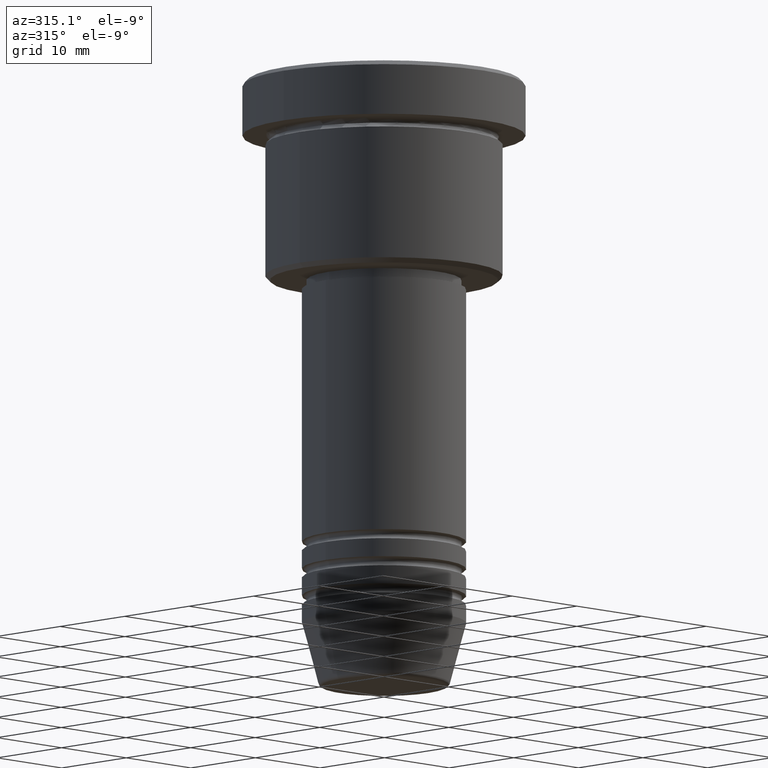
[diagram: clean part render]
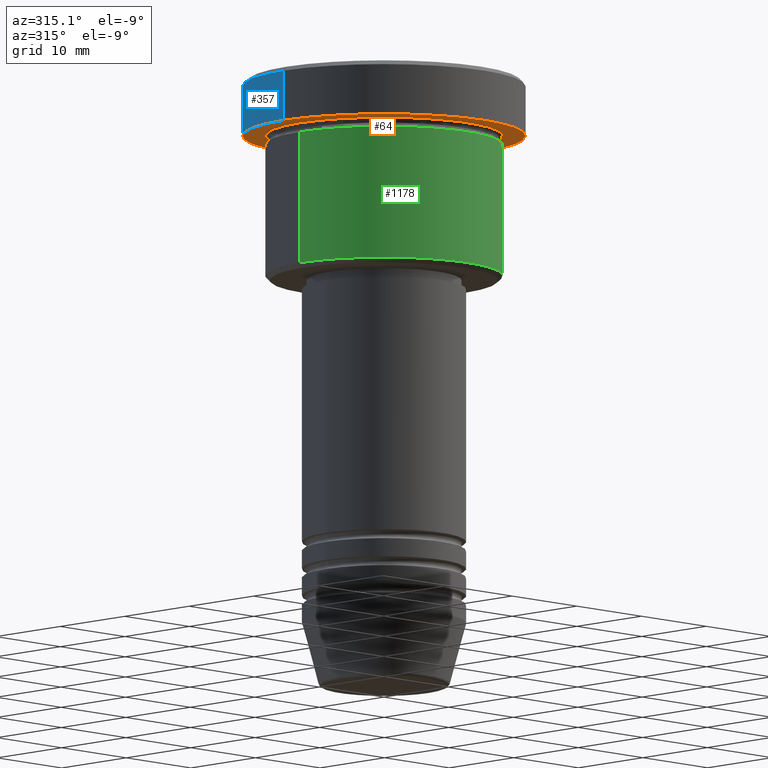
[diagram: same view with three faces highlighted in distinct colors, each labeled with its STEP entity id]
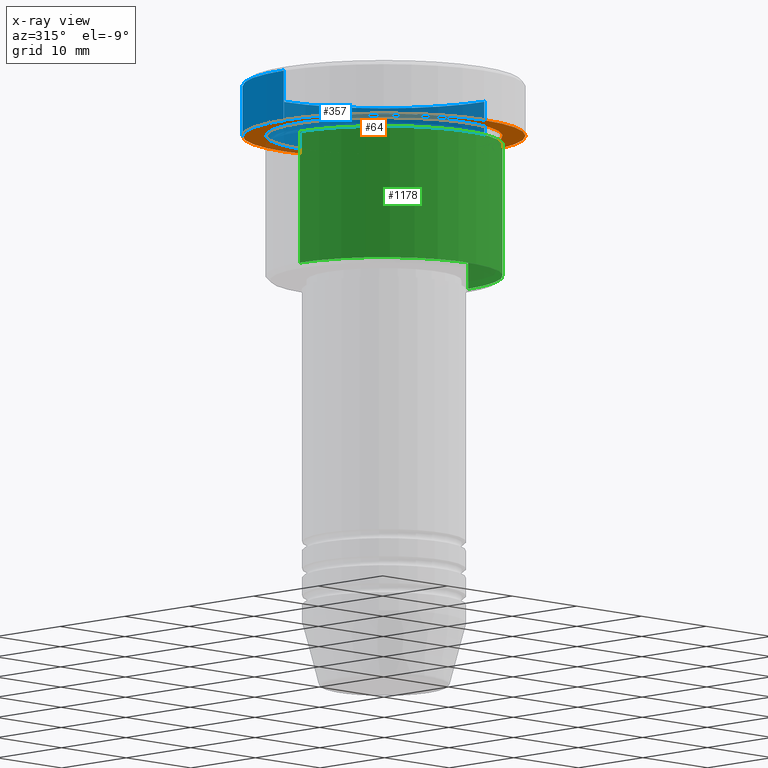
[diagram: x-ray of the same camera — body ghosted, the three highlighted faces saturated]
A machine part, auxiliary view with three faces highlighted in distinct colors.
The next image is the same camera in x-ray (body ghosted, the three faces saturated) — at least one of them is partly hidden behind the body in this view.
Their STEP definitions:

[orange] entity #64 — the highlighted planar face has unit normal (0, 0, -1).
#26 = CARTESIAN_POINT ( 'NONE',  ( 15.50000000000000000, 0.000000000000000000, -5.999999999999995559 ) ) ;
#52 = AXIS2_PLACEMENT_3D ( 'NONE', #165, #79, #621 ) ;
#64 = ADVANCED_FACE ( 'NONE', ( #421, #670 ), #877, .T. ) ;
#65 = CARTESIAN_POINT ( 'NONE',  ( 0.000000000000000000, 15.50000000000000000, -5.999999999999995559 ) ) ;
#70 = EDGE_CURVE ( 'NONE', #277, #822, #85, .T. ) ;
#79 = DIRECTION ( 'NONE',  ( -0.000000000000000000, -0.000000000000000000, 1.000000000000000000 ) ) ;
#85 = CIRCLE ( 'NONE', #163, 15.50000000000000000 ) ;
#94 = CARTESIAN_POINT ( 'NONE',  ( 13.00000000000000000, 1.592040838891559095E-15, -5.999999999999994671 ) ) ;
#139 = CARTESIAN_POINT ( 'NONE',  ( 0.000000000000000000, 0.000000000000000000, -5.999999999999995559 ) ) ;
#163 = AXIS2_PLACEMENT_3D ( 'NONE', #231, #856, #1060 ) ;
#165 = CARTESIAN_POINT ( 'NONE',  ( 0.000000000000000000, 0.000000000000000000, -5.999999999999995559 ) ) ;
#179 = ORIENTED_EDGE ( 'NONE', *, *, #739, .T. ) ;
#182 = EDGE_LOOP ( 'NONE', ( #883, #697 ) ) ;
#207 = DIRECTION ( 'NONE',  ( -0.000000000000000000, -0.000000000000000000, 1.000000000000000000 ) ) ;
#223 = CARTESIAN_POINT ( 'NONE',  ( -13.00000000000000000, 0.000000000000000000, -5.999999999999994671 ) ) ;
#231 = CARTESIAN_POINT ( 'NONE',  ( 0.000000000000000000, 0.000000000000000000, -5.999999999999995559 ) ) ;
#277 = VERTEX_POINT ( 'NONE', #26 ) ;
#317 = DIRECTION ( 'NONE',  ( 1.000000000000000000, 0.000000000000000000, 0.000000000000000000 ) ) ;
#376 = DIRECTION ( 'NONE',  ( -1.000000000000000000, 0.000000000000000000, 0.000000000000000000 ) ) ;
#421 = FACE_BOUND ( 'NONE', #784, .T. ) ;
#445 = AXIS2_PLACEMENT_3D ( 'NONE', #815, #207, #376 ) ;
#474 = EDGE_CURVE ( 'NONE', #822, #277, #692, .T. ) ;
#585 = ORIENTED_EDGE ( 'NONE', *, *, #753, .T. ) ;
#621 = DIRECTION ( 'NONE',  ( -1.000000000000000000, 0.000000000000000000, 0.000000000000000000 ) ) ;
#670 = FACE_OUTER_BOUND ( 'NONE', #182, .T. ) ;
#692 = CIRCLE ( 'NONE', #831, 15.50000000000000000 ) ;
#697 = ORIENTED_EDGE ( 'NONE', *, *, #474, .F. ) ;
#739 = EDGE_CURVE ( 'NONE', #956, #839, #1017, .T. ) ;
#753 = EDGE_CURVE ( 'NONE', #839, #956, #796, .T. ) ;
#784 = EDGE_LOOP ( 'NONE', ( #179, #585 ) ) ;
#786 = DIRECTION ( 'NONE',  ( 0.000000000000000000, 0.000000000000000000, -1.000000000000000000 ) ) ;
#796 = CIRCLE ( 'NONE', #445, 13.00000000000000000 ) ;
#815 = CARTESIAN_POINT ( 'NONE',  ( 0.000000000000000000, 0.000000000000000000, -5.999999999999995559 ) ) ;
#822 = VERTEX_POINT ( 'NONE', #1110 ) ;
#831 = AXIS2_PLACEMENT_3D ( 'NONE', #139, #859, #317 ) ;
#839 = VERTEX_POINT ( 'NONE', #94 ) ;
#856 = DIRECTION ( 'NONE',  ( -0.000000000000000000, -0.000000000000000000, 1.000000000000000000 ) ) ;
#859 = DIRECTION ( 'NONE',  ( -0.000000000000000000, -0.000000000000000000, 1.000000000000000000 ) ) ;
#877 = PLANE ( 'NONE',  #1072 ) ;
#883 = ORIENTED_EDGE ( 'NONE', *, *, #70, .F. ) ;
#956 = VERTEX_POINT ( 'NONE', #223 ) ;
#1017 = CIRCLE ( 'NONE', #52, 13.00000000000000000 ) ;
#1060 = DIRECTION ( 'NONE',  ( 1.000000000000000000, 0.000000000000000000, 0.000000000000000000 ) ) ;
#1072 = AXIS2_PLACEMENT_3D ( 'NONE', #65, #786, #1149 ) ;
#1110 = CARTESIAN_POINT ( 'NONE',  ( -15.50000000000000000, 1.898202538678397557E-15, -5.999999999999995559 ) ) ;
#1149 = DIRECTION ( 'NONE',  ( -1.000000000000000000, 0.000000000000000000, -0.000000000000000000 ) ) ;

[blue] entity #357 — the highlighted cylindrical surface (partial cylindrical patch) has radius 15.5 mm, axis along (-0, -0, 1).
#26 = CARTESIAN_POINT ( 'NONE',  ( 15.50000000000000000, 0.000000000000000000, -5.999999999999995559 ) ) ;
#70 = EDGE_CURVE ( 'NONE', #277, #822, #85, .T. ) ;
#85 = CIRCLE ( 'NONE', #163, 15.50000000000000000 ) ;
#140 = VERTEX_POINT ( 'NONE', #244 ) ;
#163 = AXIS2_PLACEMENT_3D ( 'NONE', #231, #856, #1060 ) ;
#200 = FACE_OUTER_BOUND ( 'NONE', #557, .T. ) ;
#231 = CARTESIAN_POINT ( 'NONE',  ( 0.000000000000000000, 0.000000000000000000, -5.999999999999995559 ) ) ;
#238 = VECTOR ( 'NONE', #976, 1000.000000000000000 ) ;
#244 = CARTESIAN_POINT ( 'NONE',  ( -15.50000000000000000, 1.898202538678397557E-15, -0.5000000000000057732 ) ) ;
#268 = CARTESIAN_POINT ( 'NONE',  ( 0.000000000000000000, 0.000000000000000000, -0.5000000000000057732 ) ) ;
#277 = VERTEX_POINT ( 'NONE', #26 ) ;
#357 = ADVANCED_FACE ( 'NONE', ( #200 ), #377, .T. ) ;
#358 = DIRECTION ( 'NONE',  ( 0.000000000000000000, 0.000000000000000000, -1.000000000000000000 ) ) ;
#365 = DIRECTION ( 'NONE',  ( 1.000000000000000000, 0.000000000000000000, 0.000000000000000000 ) ) ;
#367 = LINE ( 'NONE', #460, #1174 ) ;
#377 = CYLINDRICAL_SURFACE ( 'NONE', #524, 15.50000000000000000 ) ;
#400 = EDGE_CURVE ( 'NONE', #822, #140, #367, .T. ) ;
#460 = CARTESIAN_POINT ( 'NONE',  ( -15.50000000000000000, 1.898202538678397557E-15, 0.000000000000000000 ) ) ;
#524 = AXIS2_PLACEMENT_3D ( 'NONE', #566, #1006, #917 ) ;
#546 = CIRCLE ( 'NONE', #912, 15.50000000000000000 ) ;
#557 = EDGE_LOOP ( 'NONE', ( #909, #819, #916, #1039 ) ) ;
#566 = CARTESIAN_POINT ( 'NONE',  ( 0.000000000000000000, 0.000000000000000000, 0.000000000000000000 ) ) ;
#701 = EDGE_CURVE ( 'NONE', #277, #1161, #988, .T. ) ;
#819 = ORIENTED_EDGE ( 'NONE', *, *, #400, .T. ) ;
#822 = VERTEX_POINT ( 'NONE', #1110 ) ;
#827 = DIRECTION ( 'NONE',  ( -0.000000000000000000, -0.000000000000000000, 1.000000000000000000 ) ) ;
#837 = EDGE_CURVE ( 'NONE', #140, #1161, #546, .T. ) ;
#856 = DIRECTION ( 'NONE',  ( -0.000000000000000000, -0.000000000000000000, 1.000000000000000000 ) ) ;
#909 = ORIENTED_EDGE ( 'NONE', *, *, #70, .T. ) ;
#912 = AXIS2_PLACEMENT_3D ( 'NONE', #268, #358, #365 ) ;
#916 = ORIENTED_EDGE ( 'NONE', *, *, #837, .T. ) ;
#917 = DIRECTION ( 'NONE',  ( 1.000000000000000000, 0.000000000000000000, 0.000000000000000000 ) ) ;
#976 = DIRECTION ( 'NONE',  ( -0.000000000000000000, -0.000000000000000000, 1.000000000000000000 ) ) ;
#988 = LINE ( 'NONE', #1073, #238 ) ;
#1006 = DIRECTION ( 'NONE',  ( -0.000000000000000000, -0.000000000000000000, 1.000000000000000000 ) ) ;
#1039 = ORIENTED_EDGE ( 'NONE', *, *, #701, .F. ) ;
#1060 = DIRECTION ( 'NONE',  ( 1.000000000000000000, 0.000000000000000000, 0.000000000000000000 ) ) ;
#1073 = CARTESIAN_POINT ( 'NONE',  ( 15.50000000000000000, 0.000000000000000000, 0.000000000000000000 ) ) ;
#1110 = CARTESIAN_POINT ( 'NONE',  ( -15.50000000000000000, 1.898202538678397557E-15, -5.999999999999995559 ) ) ;
#1161 = VERTEX_POINT ( 'NONE', #1169 ) ;
#1169 = CARTESIAN_POINT ( 'NONE',  ( 15.50000000000000000, 0.000000000000000000, -0.5000000000000057732 ) ) ;
#1174 = VECTOR ( 'NONE', #827, 1000.000000000000000 ) ;

[green] entity #1178 — the highlighted cylindrical surface (partial cylindrical patch) has radius 13 mm, axis along (-0, -0, 1).
#25 = ORIENTED_EDGE ( 'NONE', *, *, #485, .T. ) ;
#38 = CARTESIAN_POINT ( 'NONE',  ( 13.00000000000000000, 0.000000000000000000, -6.999999999999995559 ) ) ;
#49 = CARTESIAN_POINT ( 'NONE',  ( -13.00000000000000000, 1.592040838891559095E-15, -21.49999999999999289 ) ) ;
#53 = LINE ( 'NONE', #413, #1042 ) ;
#57 = CARTESIAN_POINT ( 'NONE',  ( 0.000000000000000000, 0.000000000000000000, -21.49999999999999289 ) ) ;
#131 = VERTEX_POINT ( 'NONE', #49 ) ;
#171 = ORIENTED_EDGE ( 'NONE', *, *, #843, .F. ) ;
#181 = CARTESIAN_POINT ( 'NONE',  ( -13.00000000000000000, 1.592040838891559095E-15, 0.000000000000000000 ) ) ;
#219 = AXIS2_PLACEMENT_3D ( 'NONE', #441, #802, #1068 ) ;
#254 = EDGE_CURVE ( 'NONE', #673, #455, #713, .T. ) ;
#288 = DIRECTION ( 'NONE',  ( -0.000000000000000000, -0.000000000000000000, 1.000000000000000000 ) ) ;
#298 = VECTOR ( 'NONE', #288, 1000.000000000000000 ) ;
#312 = AXIS2_PLACEMENT_3D ( 'NONE', #57, #781, #497 ) ;
#413 = CARTESIAN_POINT ( 'NONE',  ( 13.00000000000000000, 0.000000000000000000, 0.000000000000000000 ) ) ;
#422 = CYLINDRICAL_SURFACE ( 'NONE', #913, 13.00000000000000000 ) ;
#437 = ORIENTED_EDGE ( 'NONE', *, *, #986, .T. ) ;
#441 = CARTESIAN_POINT ( 'NONE',  ( 0.000000000000000000, 0.000000000000000000, -6.999999999999995559 ) ) ;
#455 = VERTEX_POINT ( 'NONE', #38 ) ;
#485 = EDGE_CURVE ( 'NONE', #131, #1002, #893, .T. ) ;
#497 = DIRECTION ( 'NONE',  ( -1.000000000000000000, 0.000000000000000000, 0.000000000000000000 ) ) ;
#509 = DIRECTION ( 'NONE',  ( -0.000000000000000000, -0.000000000000000000, 1.000000000000000000 ) ) ;
#673 = VERTEX_POINT ( 'NONE', #1148 ) ;
#687 = FACE_OUTER_BOUND ( 'NONE', #1035, .T. ) ;
#706 = ORIENTED_EDGE ( 'NONE', *, *, #254, .F. ) ;
#713 = CIRCLE ( 'NONE', #219, 13.00000000000000000 ) ;
#754 = CARTESIAN_POINT ( 'NONE',  ( 13.00000000000000000, 0.000000000000000000, -21.49999999999999289 ) ) ;
#779 = DIRECTION ( 'NONE',  ( -0.000000000000000000, -0.000000000000000000, 1.000000000000000000 ) ) ;
#781 = DIRECTION ( 'NONE',  ( -0.000000000000000000, -0.000000000000000000, 1.000000000000000000 ) ) ;
#802 = DIRECTION ( 'NONE',  ( -0.000000000000000000, -0.000000000000000000, 1.000000000000000000 ) ) ;
#825 = LINE ( 'NONE', #181, #298 ) ;
#843 = EDGE_CURVE ( 'NONE', #131, #673, #825, .T. ) ;
#893 = CIRCLE ( 'NONE', #312, 13.00000000000000000 ) ;
#913 = AXIS2_PLACEMENT_3D ( 'NONE', #1053, #509, #1150 ) ;
#986 = EDGE_CURVE ( 'NONE', #1002, #455, #53, .T. ) ;
#1002 = VERTEX_POINT ( 'NONE', #754 ) ;
#1035 = EDGE_LOOP ( 'NONE', ( #171, #25, #437, #706 ) ) ;
#1042 = VECTOR ( 'NONE', #779, 1000.000000000000000 ) ;
#1053 = CARTESIAN_POINT ( 'NONE',  ( 0.000000000000000000, 0.000000000000000000, 0.000000000000000000 ) ) ;
#1068 = DIRECTION ( 'NONE',  ( 1.000000000000000000, 0.000000000000000000, 0.000000000000000000 ) ) ;
#1148 = CARTESIAN_POINT ( 'NONE',  ( -13.00000000000000000, 1.592040838891559095E-15, -6.999999999999995559 ) ) ;
#1150 = DIRECTION ( 'NONE',  ( 1.000000000000000000, 0.000000000000000000, 0.000000000000000000 ) ) ;
#1178 = ADVANCED_FACE ( 'NONE', ( #687 ), #422, .T. ) ;